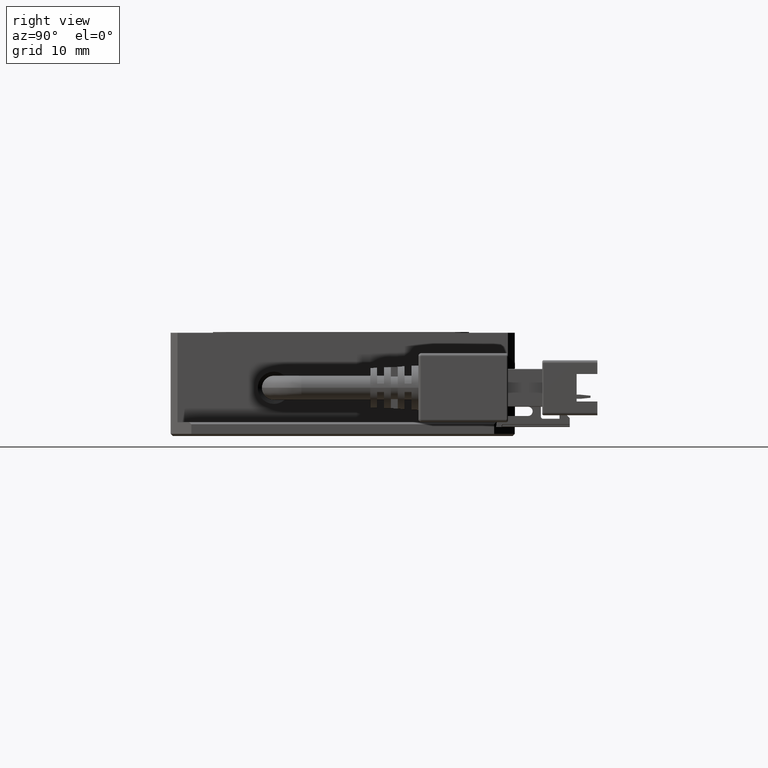
[diagram: clean part render]
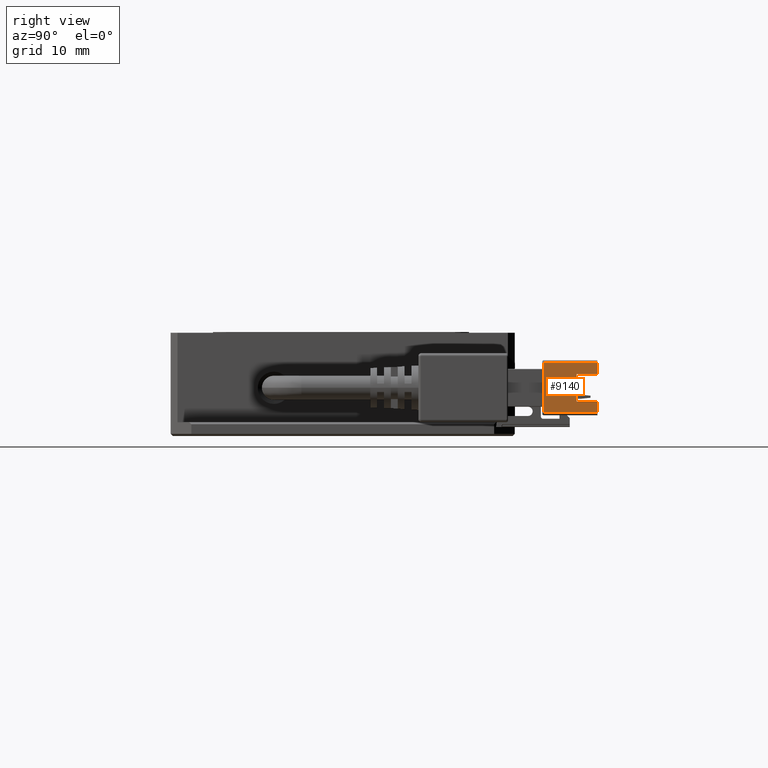
[diagram: same view with one face highlighted and labeled with its STEP entity id]
A machine part, right view. The second image highlights one B-rep face of the part: STEP entity #9140.
In plain terms, the highlighted planar face has unit normal (-1, -0, -0).
Its self-contained STEP definition (entity closure, byte-faithful):
#341 = VECTOR ( 'NONE', #669, 1000.000000000000000 ) ;
#553 = LINE ( 'NONE', #15207, #12728 ) ;
#638 = DIRECTION ( 'NONE',  ( -1.000000000000000000, -3.081487911019577400E-033, -8.673617379884010800E-017 ) ) ;
#669 = DIRECTION ( 'NONE',  ( 8.673617379884010800E-017, -0.0000000000000000000, -1.000000000000000000 ) ) ;
#1825 = FACE_OUTER_BOUND ( 'NONE', #4586, .T. ) ;
#2676 = DIRECTION ( 'NONE',  ( -3.081487911019577400E-033, 1.000000000000000000, -2.672764710092188000E-049 ) ) ;
#2930 = VERTEX_POINT ( 'NONE', #9427 ) ;
#2985 = CARTESIAN_POINT ( 'NONE',  ( 51.09316533027874400, 39.29095074455904100, 0.9999999999836901600 ) ) ;
#4081 = LINE ( 'NONE', #8997, #12511 ) ;
#4408 = ORIENTED_EDGE ( 'NONE', *, *, #20464, .F. ) ;
#4432 = EDGE_CURVE ( 'NONE', #19282, #2930, #20119, .T. ) ;
#4475 = CARTESIAN_POINT ( 'NONE',  ( 51.09316533027874400, 36.29095074455903400, 2.999999999983692200 ) ) ;
#4496 = ORIENTED_EDGE ( 'NONE', *, *, #16562, .F. ) ;
#4586 = EDGE_LOOP ( 'NONE', ( #4496, #5928, #4408, #18761, #5942, #16060, #14037, #20551 ) ) ;
#5777 = DIRECTION ( 'NONE',  ( -8.673617379884010800E-017, -0.0000000000000000000, 1.000000000000000000 ) ) ;
#5919 = CARTESIAN_POINT ( 'NONE',  ( 51.09316533027874400, 39.29095074455904100, 6.999999999983693000 ) ) ;
#5928 = ORIENTED_EDGE ( 'NONE', *, *, #14504, .F. ) ;
#5942 = ORIENTED_EDGE ( 'NONE', *, *, #16109, .F. ) ;
#6079 = DIRECTION ( 'NONE',  ( 8.673617379884010800E-017, -0.0000000000000000000, -1.000000000000000000 ) ) ;
#6583 = VECTOR ( 'NONE', #14079, 1000.000000000000000 ) ;
#7294 = EDGE_CURVE ( 'NONE', #12027, #19141, #4081, .T. ) ;
#7869 = LINE ( 'NONE', #15514, #19890 ) ;
#7973 = VERTEX_POINT ( 'NONE', #4475 ) ;
#8008 = EDGE_CURVE ( 'NONE', #2930, #12027, #10233, .T. ) ;
#8997 = CARTESIAN_POINT ( 'NONE',  ( 51.09316533027874400, 39.29095074455904100, 6.999999999983693000 ) ) ;
#9140 = ADVANCED_FACE ( 'NONE', ( #1825 ), #19509, .F. ) ;
#9427 = CARTESIAN_POINT ( 'NONE',  ( 51.09316533027874400, 39.29095074455904100, 8.599999999983692700 ) ) ;
#9490 = CARTESIAN_POINT ( 'NONE',  ( 51.09316533027874400, 39.29095074455904100, 8.599999999983690900 ) ) ;
#10147 = CARTESIAN_POINT ( 'NONE',  ( 51.09316533027874400, 39.29095074455904100, 8.999999999983691300 ) ) ;
#10233 = LINE ( 'NONE', #2985, #6583 ) ;
#10387 = CARTESIAN_POINT ( 'NONE',  ( 51.09316533027874400, 31.49095074455902900, 1.399999999983690700 ) ) ;
#10430 = CARTESIAN_POINT ( 'NONE',  ( 51.09316533027874400, 39.29095074455904100, 2.999999999983692200 ) ) ;
#11751 = DIRECTION ( 'NONE',  ( -8.673617379884010800E-017, 0.0000000000000000000, 1.000000000000000000 ) ) ;
#11901 = LINE ( 'NONE', #14935, #15621 ) ;
#12027 = VERTEX_POINT ( 'NONE', #5919 ) ;
#12214 = CARTESIAN_POINT ( 'NONE',  ( 51.09316533027874400, 39.29095074455904100, 2.999999999983692200 ) ) ;
#12492 = VERTEX_POINT ( 'NONE', #12214 ) ;
#12511 = VECTOR ( 'NONE', #19982, 1000.000000000000000 ) ;
#12669 = DIRECTION ( 'NONE',  ( -3.081487911019577400E-033, 1.000000000000000000, -2.672764710092188000E-049 ) ) ;
#12728 = VECTOR ( 'NONE', #5777, 1000.000000000000000 ) ;
#13811 = VECTOR ( 'NONE', #2676, 1000.000000000000000 ) ;
#14037 = ORIENTED_EDGE ( 'NONE', *, *, #8008, .F. ) ;
#14079 = DIRECTION ( 'NONE',  ( 8.673617379884010800E-017, 0.0000000000000000000, -1.000000000000000000 ) ) ;
#14106 = VERTEX_POINT ( 'NONE', #10387 ) ;
#14504 = EDGE_CURVE ( 'NONE', #17527, #14106, #11901, .T. ) ;
#14511 = AXIS2_PLACEMENT_3D ( 'NONE', #10147, #638, #11751 ) ;
#14935 = CARTESIAN_POINT ( 'NONE',  ( 51.09316533027874400, 39.29095074455904100, 1.399999999983690700 ) ) ;
#15207 = CARTESIAN_POINT ( 'NONE',  ( 51.09316533027874400, 31.49095074455902900, 8.999999999983691300 ) ) ;
#15473 = VECTOR ( 'NONE', #12669, 1000.000000000000000 ) ;
#15514 = CARTESIAN_POINT ( 'NONE',  ( 51.09316533027874400, 36.29095074455903400, 8.999999999983691300 ) ) ;
#15621 = VECTOR ( 'NONE', #16506, 1000.000000000000000 ) ;
#16060 = ORIENTED_EDGE ( 'NONE', *, *, #7294, .F. ) ;
#16109 = EDGE_CURVE ( 'NONE', #19141, #7973, #7869, .T. ) ;
#16506 = DIRECTION ( 'NONE',  ( 3.081487911019577400E-033, -1.000000000000000000, 2.672764710092188000E-049 ) ) ;
#16562 = EDGE_CURVE ( 'NONE', #14106, #19282, #553, .T. ) ;
#17190 = LINE ( 'NONE', #19586, #341 ) ;
#17527 = VERTEX_POINT ( 'NONE', #19220 ) ;
#17770 = CARTESIAN_POINT ( 'NONE',  ( 51.09316533027874400, 36.29095074455903400, 6.999999999983693000 ) ) ;
#17972 = LINE ( 'NONE', #10430, #13811 ) ;
#18761 = ORIENTED_EDGE ( 'NONE', *, *, #19817, .F. ) ;
#19141 = VERTEX_POINT ( 'NONE', #17770 ) ;
#19220 = CARTESIAN_POINT ( 'NONE',  ( 51.09316533027874400, 39.29095074455904100, 1.399999999983690700 ) ) ;
#19282 = VERTEX_POINT ( 'NONE', #19944 ) ;
#19509 = PLANE ( 'NONE',  #14511 ) ;
#19586 = CARTESIAN_POINT ( 'NONE',  ( 51.09316533027874400, 39.29095074455904100, 8.999999999983691300 ) ) ;
#19817 = EDGE_CURVE ( 'NONE', #7973, #12492, #17972, .T. ) ;
#19890 = VECTOR ( 'NONE', #6079, 1000.000000000000000 ) ;
#19944 = CARTESIAN_POINT ( 'NONE',  ( 51.09316533027874400, 31.49095074455902900, 8.599999999983690900 ) ) ;
#19982 = DIRECTION ( 'NONE',  ( 3.081487911019577400E-033, -1.000000000000000000, 2.672764710092188000E-049 ) ) ;
#20119 = LINE ( 'NONE', #9490, #15473 ) ;
#20464 = EDGE_CURVE ( 'NONE', #12492, #17527, #17190, .T. ) ;
#20551 = ORIENTED_EDGE ( 'NONE', *, *, #4432, .F. ) ;